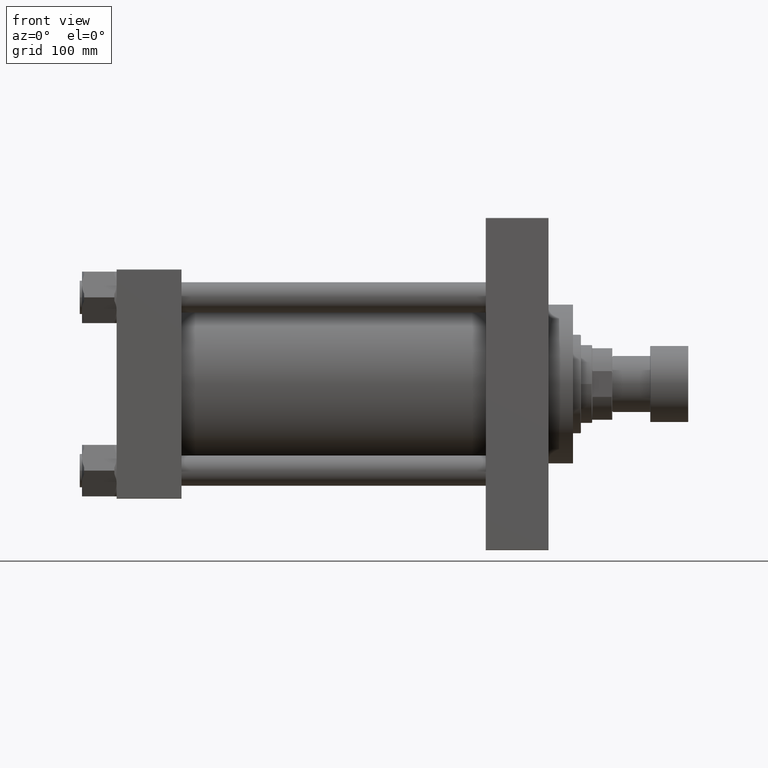
[diagram: clean part render]
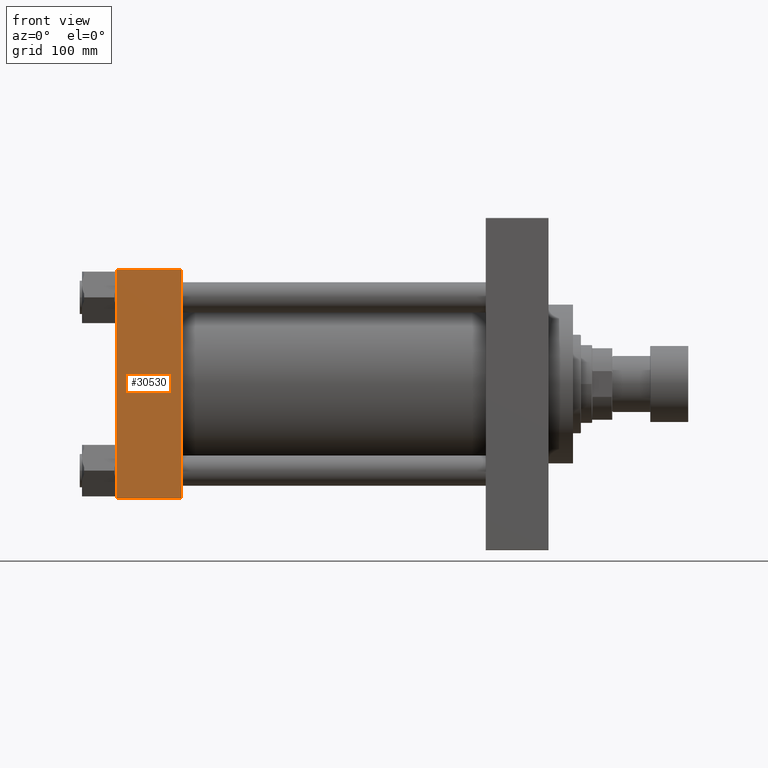
[diagram: same view with one face highlighted and labeled with its STEP entity id]
A machine part, front view. The second image highlights one B-rep face of the part: STEP entity #30530.
In plain terms, the highlighted planar face has unit normal (0, 1, -0).
Its self-contained STEP definition (entity closure, byte-faithful):
#13 = CARTESIAN_POINT ( 'NONE',  ( 58.00000000000000000, -102.4999999999999716, 102.0000000000000000 ) ) ;
#1703 = PLANE ( 'NONE',  #29082 ) ;
#1745 = ORIENTED_EDGE ( 'NONE', *, *, #18718, .T. ) ;
#3360 = VERTEX_POINT ( 'NONE', #31737 ) ;
#5236 = VERTEX_POINT ( 'NONE', #26483 ) ;
#5320 = EDGE_LOOP ( 'NONE', ( #11359, #11774, #9595, #1745 ) ) ;
#5370 = VECTOR ( 'NONE', #44215, 1000.000000000000000 ) ;
#6748 = CARTESIAN_POINT ( 'NONE',  ( 0.000000000000000000, -102.5000000000000000, -101.9999999999998863 ) ) ;
#9595 = ORIENTED_EDGE ( 'NONE', *, *, #28361, .F. ) ;
#11083 = DIRECTION ( 'NONE',  ( 0.000000000000000000, -1.353930517835556973E-16, -1.000000000000000000 ) ) ;
#11183 = LINE ( 'NONE', #26099, #34364 ) ;
#11359 = ORIENTED_EDGE ( 'NONE', *, *, #25447, .T. ) ;
#11774 = ORIENTED_EDGE ( 'NONE', *, *, #31885, .T. ) ;
#16617 = DIRECTION ( 'NONE',  ( 0.000000000000000000, 1.000000000000000000, -1.353930517835556973E-16 ) ) ;
#16637 = VECTOR ( 'NONE', #24557, 1000.000000000000000 ) ;
#18718 = EDGE_CURVE ( 'NONE', #3360, #5236, #32998, .T. ) ;
#20641 = CARTESIAN_POINT ( 'NONE',  ( 58.00000000000000000, -102.5000000000000000, -101.9999999999999432 ) ) ;
#24557 = DIRECTION ( 'NONE',  ( 1.000000000000000000, 0.000000000000000000, 0.000000000000000000 ) ) ;
#25447 = EDGE_CURVE ( 'NONE', #5236, #42690, #11183, .T. ) ;
#26099 = CARTESIAN_POINT ( 'NONE',  ( 0.000000000000000000, -102.4999999999999716, 102.5000000000000000 ) ) ;
#26483 = CARTESIAN_POINT ( 'NONE',  ( 0.000000000000000000, -102.4999999999999716, 102.0000000000000000 ) ) ;
#28361 = EDGE_CURVE ( 'NONE', #3360, #43406, #29653, .T. ) ;
#29082 = AXIS2_PLACEMENT_3D ( 'NONE', #47109, #16617, #40027 ) ;
#29653 = LINE ( 'NONE', #44538, #39123 ) ;
#30530 = ADVANCED_FACE ( 'NONE', ( #32229 ), #1703, .F. ) ;
#31737 = CARTESIAN_POINT ( 'NONE',  ( 58.00000000000000000, -102.4999999999999716, 102.0000000000000000 ) ) ;
#31885 = EDGE_CURVE ( 'NONE', #42690, #43406, #35062, .T. ) ;
#32229 = FACE_OUTER_BOUND ( 'NONE', #5320, .T. ) ;
#32642 = CARTESIAN_POINT ( 'NONE',  ( 58.00000000000000000, -102.5000000000000000, -101.9999999999998863 ) ) ;
#32998 = LINE ( 'NONE', #13, #5370 ) ;
#34364 = VECTOR ( 'NONE', #44881, 1000.000000000000000 ) ;
#35062 = LINE ( 'NONE', #20641, #16637 ) ;
#39123 = VECTOR ( 'NONE', #11083, 1000.000000000000000 ) ;
#40027 = DIRECTION ( 'NONE',  ( 0.000000000000000000, 1.353930517835556973E-16, 1.000000000000000000 ) ) ;
#42690 = VERTEX_POINT ( 'NONE', #6748 ) ;
#43406 = VERTEX_POINT ( 'NONE', #32642 ) ;
#44215 = DIRECTION ( 'NONE',  ( -1.000000000000000000, 0.000000000000000000, 0.000000000000000000 ) ) ;
#44538 = CARTESIAN_POINT ( 'NONE',  ( 58.00000000000000000, -102.4999999999999716, 102.5000000000000000 ) ) ;
#44881 = DIRECTION ( 'NONE',  ( 0.000000000000000000, -1.353930517835556973E-16, -1.000000000000000000 ) ) ;
#47109 = CARTESIAN_POINT ( 'NONE',  ( 58.00000000000000000, -102.4999999999999716, 102.5000000000000000 ) ) ;